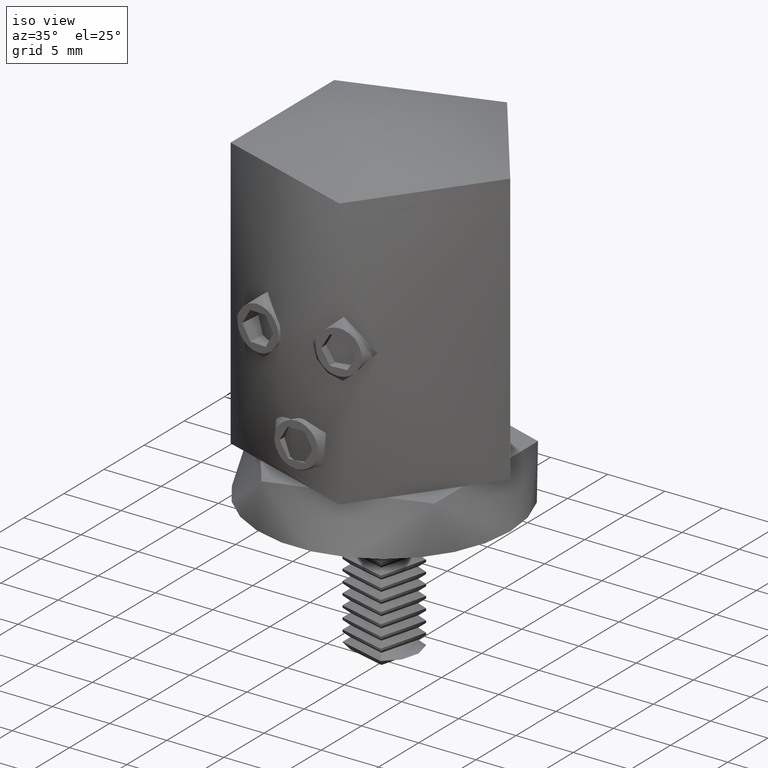
[diagram: clean part render]
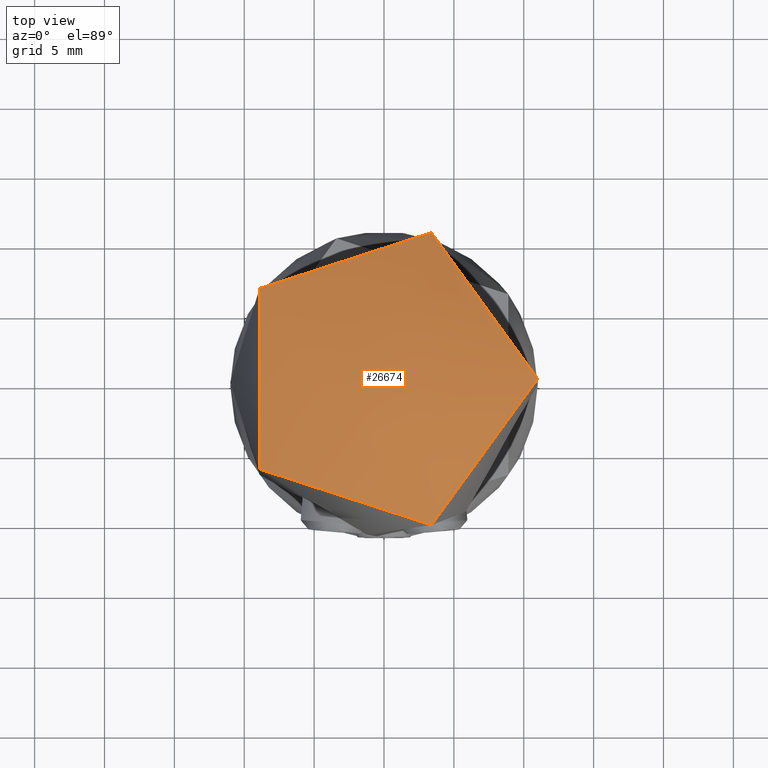
[diagram: tour spotlight — one face highlighted and labeled with its STEP entity id]
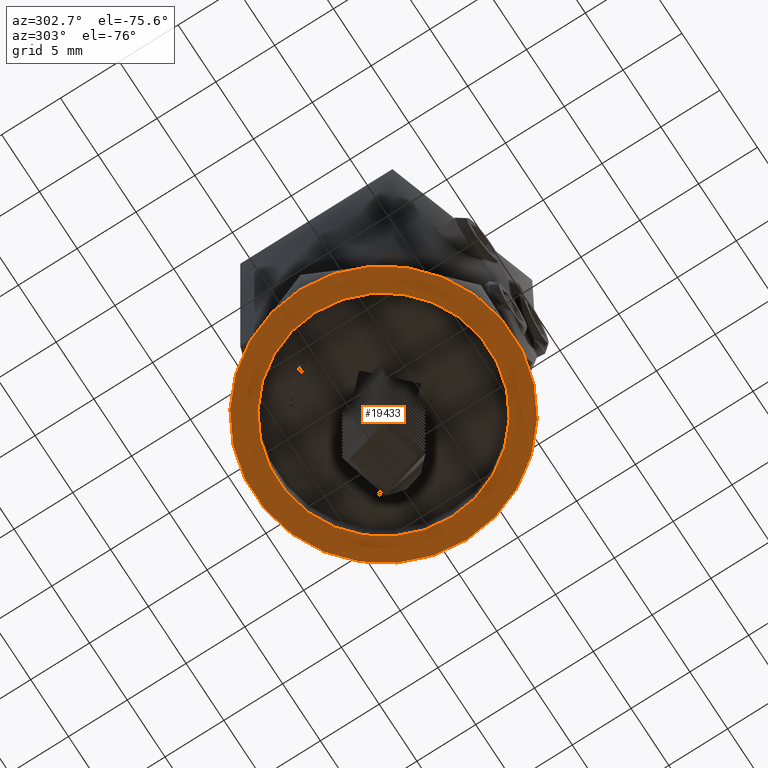
[diagram: tour spotlight — one face highlighted and labeled with its STEP entity id]
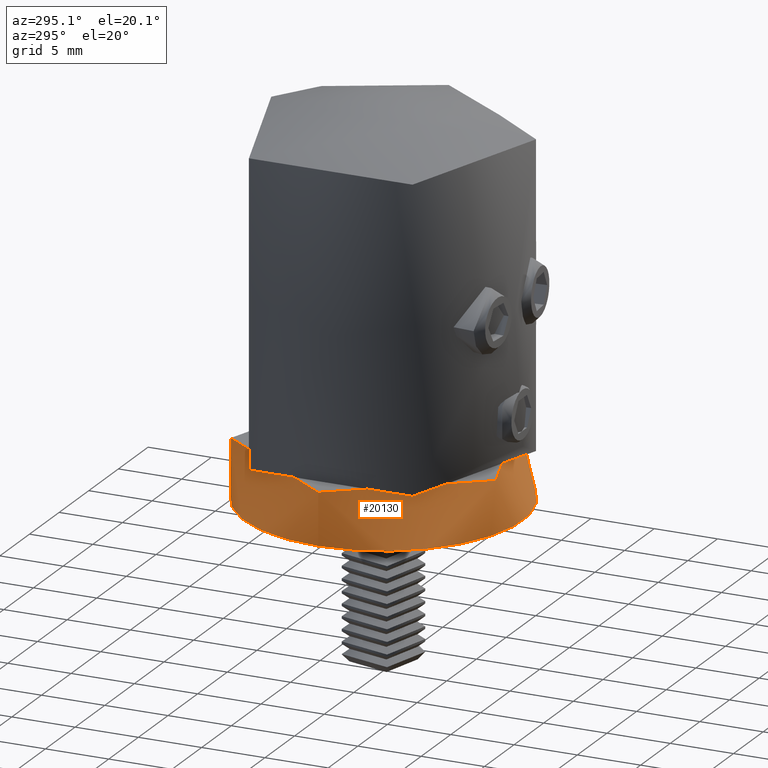
[diagram: tour spotlight — one face highlighted and labeled with its STEP entity id]
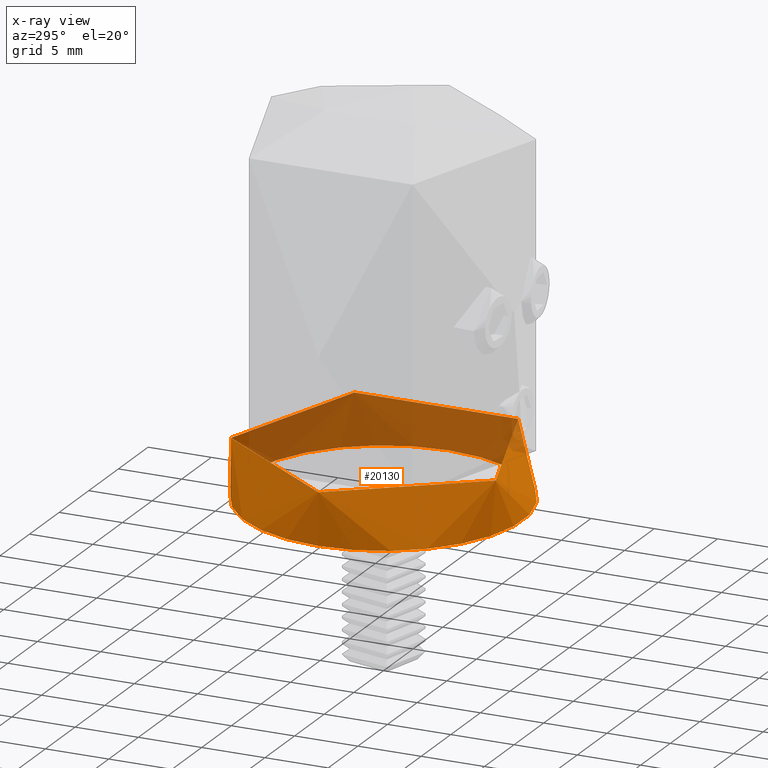
[diagram: x-ray of the same camera — body ghosted, this tour face saturated]
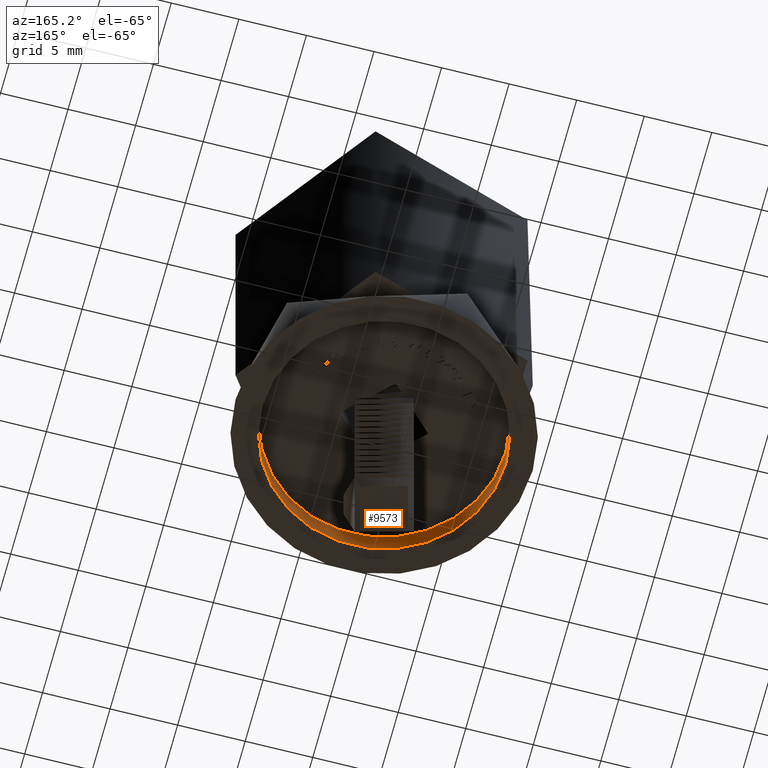
[diagram: tour spotlight — one face highlighted and labeled with its STEP entity id]
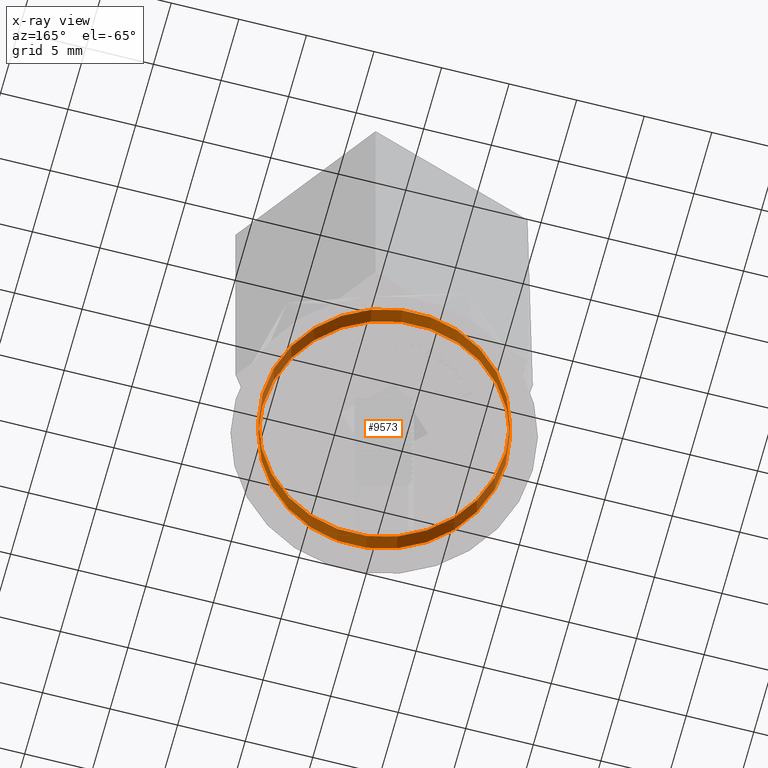
[diagram: x-ray of the same camera — body ghosted, this tour face saturated]
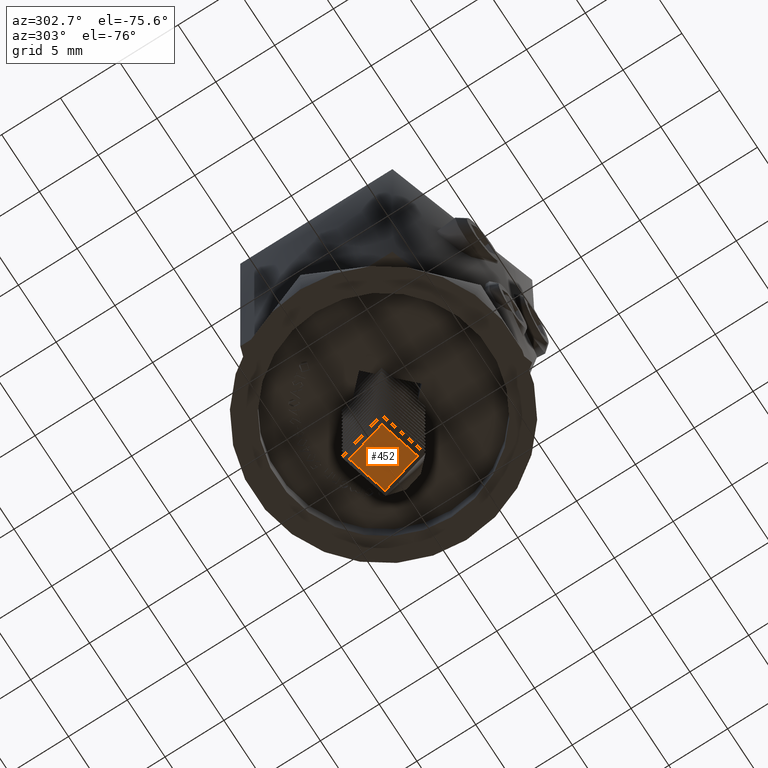
[diagram: tour spotlight — one face highlighted and labeled with its STEP entity id]
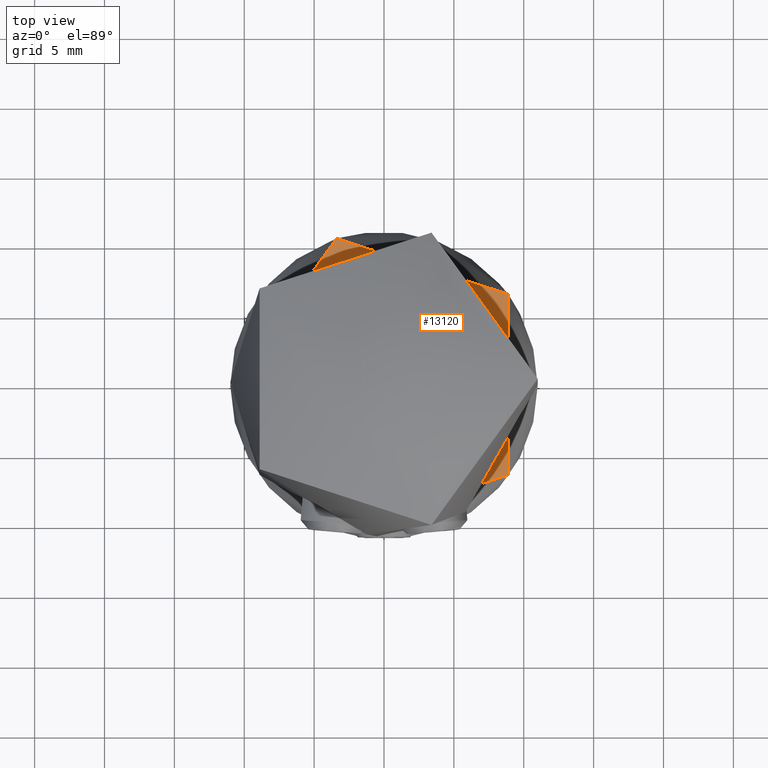
[diagram: tour spotlight — one face highlighted and labeled with its STEP entity id]
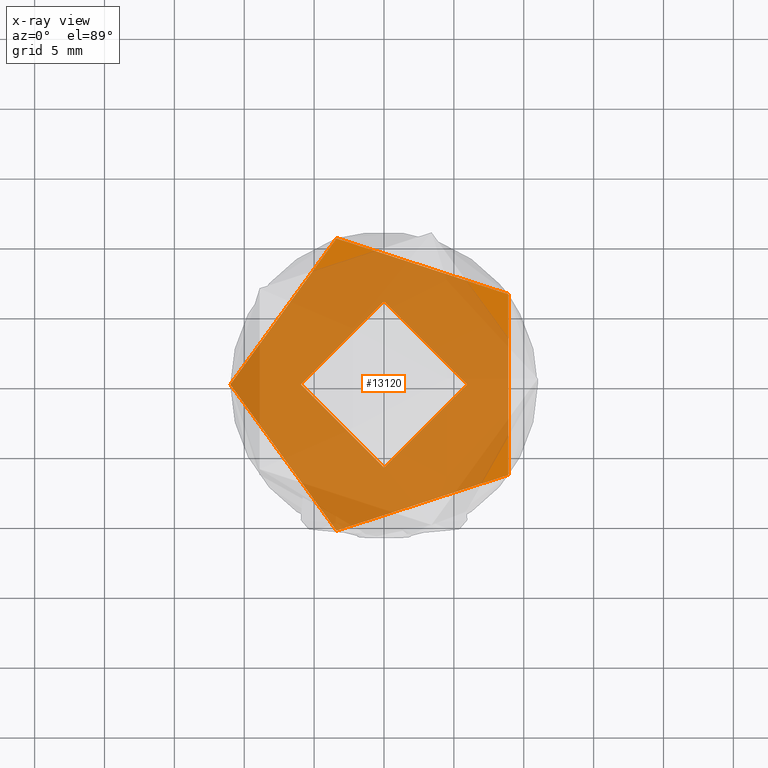
[diagram: x-ray of the same camera — body ghosted, this tour face saturated]
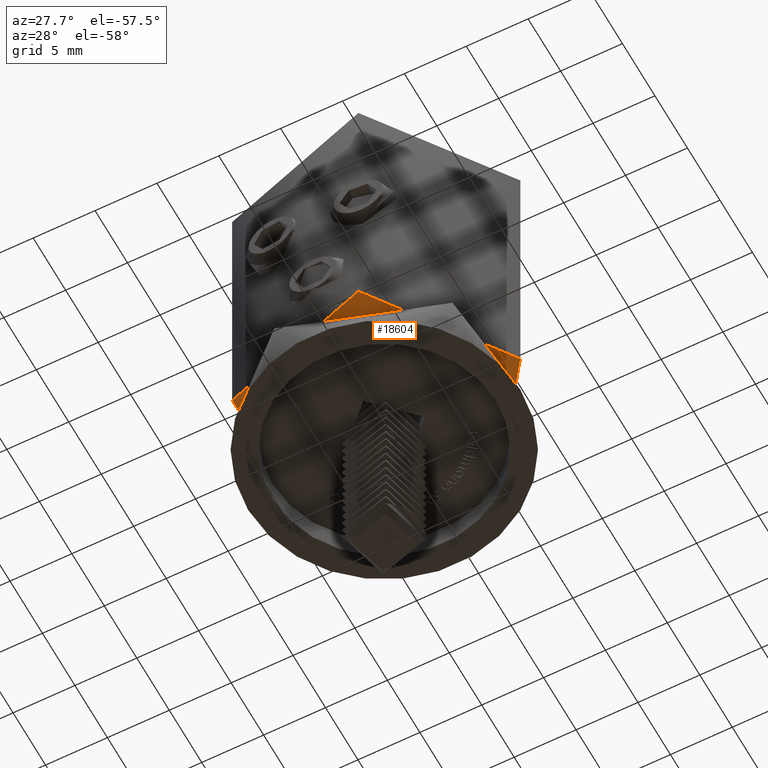
[diagram: tour spotlight — one face highlighted and labeled with its STEP entity id]
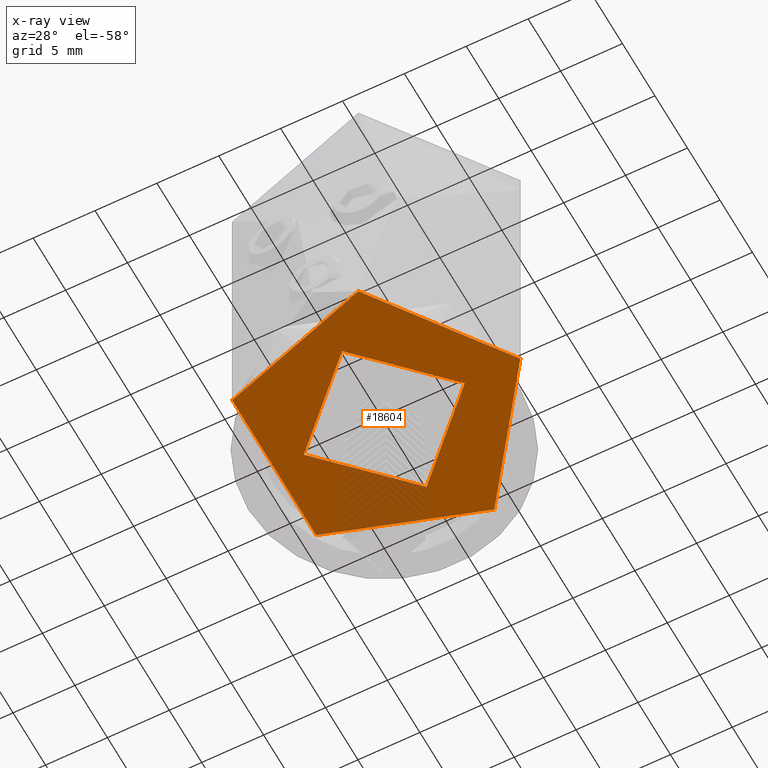
[diagram: x-ray of the same camera — body ghosted, this tour face saturated]
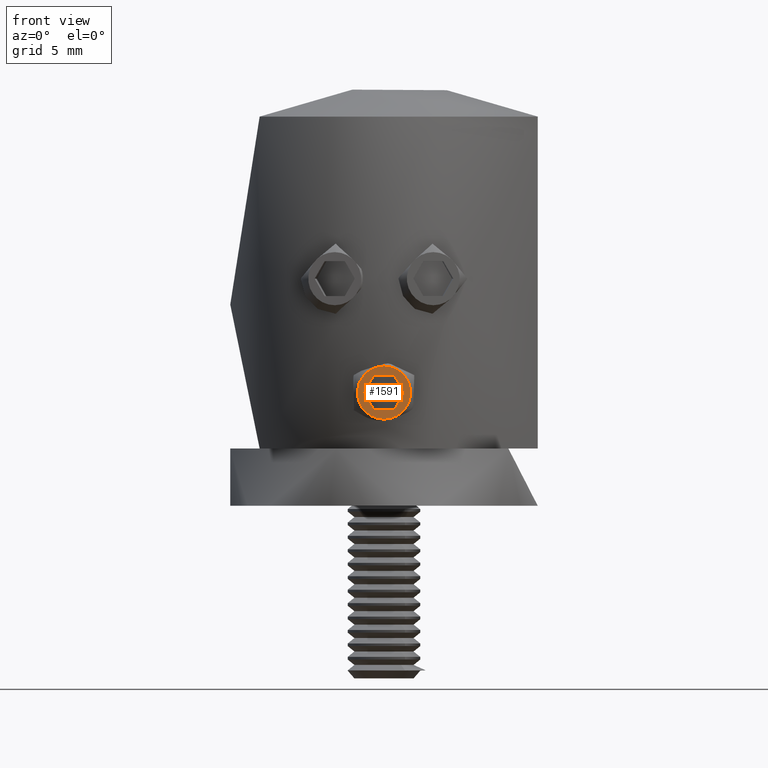
[diagram: tour spotlight — one face highlighted and labeled with its STEP entity id]
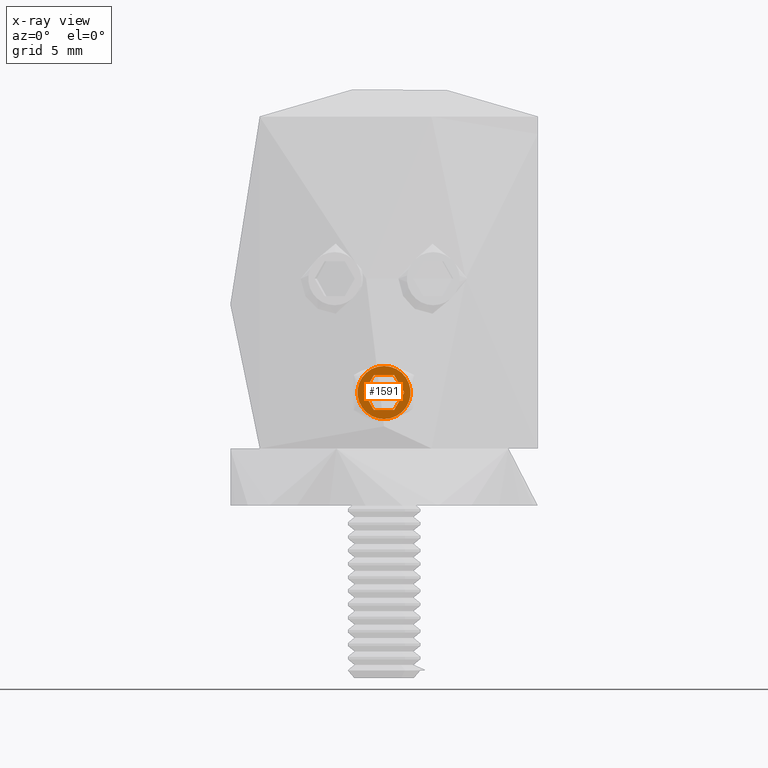
[diagram: x-ray of the same camera — body ghosted, this tour face saturated]
A machine part: a face-by-face anatomy tour. The part has 428 B-rep faces; the first image is the clean iso view, then the 8 largest visible faces are spotlighted one at a time (largest first), each with its STEP entity span.

Face 1 — top view, entity #26674. In plain terms, the highlighted spherical surface has radius 28 mm.
Definition (entity closure, byte-faithful):
#2062 = AXIS2_PLACEMENT_3D ( 'NONE', #13903, #26858, #18201 ) ;
#3911 = CARTESIAN_POINT ( 'NONE',  ( 10.99999999999999600, 0.0000000000000000000, 23.74878637916747000 ) ) ;
#7487 = DIRECTION ( 'NONE',  ( -0.0000000000000000000, -0.0000000000000000000, 1.000000000000000000 ) ) ;
#10169 = ORIENTED_EDGE ( 'NONE', *, *, #20635, .T. ) ;
#13903 = CARTESIAN_POINT ( 'NONE',  ( 0.0000000000000000000, 0.0000000000000000000, -2.000000000000008900 ) ) ;
#15754 = FACE_OUTER_BOUND ( 'NONE', #22679, .T. ) ;
#18201 = DIRECTION ( 'NONE',  ( 0.0000000000000000000, 1.000000000000000000, 0.0000000000000000000 ) ) ;
#20235 = CARTESIAN_POINT ( 'NONE',  ( 0.0000000000000000000, 0.0000000000000000000, 23.74878637916747000 ) ) ;
#20635 = EDGE_CURVE ( 'NONE', #23328, #23328, #25761, .T. ) ;
#22354 = DIRECTION ( 'NONE',  ( 1.000000000000000000, 0.0000000000000000000, 0.0000000000000000000 ) ) ;
#22679 = EDGE_LOOP ( 'NONE', ( #10169 ) ) ;
#23328 = VERTEX_POINT ( 'NONE', #3911 ) ;
#23390 = SPHERICAL_SURFACE ( 'NONE', #2062, 28.00000000000000400 ) ;
#25761 = CIRCLE ( 'NONE', #27180, 10.99999999999999600 ) ;
#26674 = ADVANCED_FACE ( 'NONE', ( #15754 ), #23390, .T. ) ;
#26858 = DIRECTION ( 'NONE',  ( -1.000000000000000000, 0.0000000000000000000, 0.0000000000000000000 ) ) ;
#27180 = AXIS2_PLACEMENT_3D ( 'NONE', #20235, #7487, #22354 ) ;

Face 2 — auxiliary view, entity #19433. In plain terms, the highlighted planar face has unit normal (0, 0, -1).
Definition (entity closure, byte-faithful):
#607 = AXIS2_PLACEMENT_3D ( 'NONE', #18437, #16365, #3906 ) ;
#1583 = CARTESIAN_POINT ( 'NONE',  ( 0.0000000000000000000, 0.0000000000000000000, -4.099999999999999600 ) ) ;
#2397 = VERTEX_POINT ( 'NONE', #12282 ) ;
#3906 = DIRECTION ( 'NONE',  ( -1.000000000000000000, 0.0000000000000000000, 0.0000000000000000000 ) ) ;
#5112 = AXIS2_PLACEMENT_3D ( 'NONE', #18359, #5598, #14163 ) ;
#5598 = DIRECTION ( 'NONE',  ( -0.0000000000000000000, -0.0000000000000000000, -1.000000000000000000 ) ) ;
#6943 = AXIS2_PLACEMENT_3D ( 'NONE', #1583, #14210, #10024 ) ;
#7808 = EDGE_CURVE ( 'NONE', #2397, #2397, #20114, .T. ) ;
#8095 = ORIENTED_EDGE ( 'NONE', *, *, #12590, .T. ) ;
#9032 = EDGE_LOOP ( 'NONE', ( #8095 ) ) ;
#10024 = DIRECTION ( 'NONE',  ( -1.000000000000000000, 0.0000000000000000000, 0.0000000000000000000 ) ) ;
#11844 = CIRCLE ( 'NONE', #6943, 11.00000000000000000 ) ;
#12282 = CARTESIAN_POINT ( 'NONE',  ( -9.000000000000000000, 0.0000000000000000000, -4.099999999999999600 ) ) ;
#12590 = EDGE_CURVE ( 'NONE', #25349, #25349, #11844, .T. ) ;
#14163 = DIRECTION ( 'NONE',  ( -1.000000000000000000, 0.0000000000000000000, 0.0000000000000000000 ) ) ;
#14210 = DIRECTION ( 'NONE',  ( -0.0000000000000000000, -0.0000000000000000000, -1.000000000000000000 ) ) ;
#14335 = ORIENTED_EDGE ( 'NONE', *, *, #7808, .F. ) ;
#14517 = CARTESIAN_POINT ( 'NONE',  ( -11.00000000000000000, 0.0000000000000000000, -4.099999999999999600 ) ) ;
#16365 = DIRECTION ( 'NONE',  ( -0.0000000000000000000, 0.0000000000000000000, -1.000000000000000000 ) ) ;
#16647 = PLANE ( 'NONE',  #607 ) ;
#16788 = FACE_BOUND ( 'NONE', #19451, .T. ) ;
#18359 = CARTESIAN_POINT ( 'NONE',  ( 0.0000000000000000000, 0.0000000000000000000, -4.099999999999999600 ) ) ;
#18437 = CARTESIAN_POINT ( 'NONE',  ( 0.0000000000000000000, 11.00000000000000000, -4.099999999999999600 ) ) ;
#19433 = ADVANCED_FACE ( 'NONE', ( #21108, #16788 ), #16647, .T. ) ;
#19451 = EDGE_LOOP ( 'NONE', ( #14335 ) ) ;
#20114 = CIRCLE ( 'NONE', #5112, 9.000000000000000000 ) ;
#21108 = FACE_OUTER_BOUND ( 'NONE', #9032, .T. ) ;
#25349 = VERTEX_POINT ( 'NONE', #14517 ) ;

Face 3 — auxiliary view, entity #20130. An x-ray twin of the same camera follows (body ghosted, this face saturated) — the face is partly hidden behind the body. In plain terms, the highlighted cylindrical surface (bore or boss wall) has radius 11 mm, axis along (-0, -0, -1).
Definition (entity closure, byte-faithful):
#83 = VERTEX_POINT ( 'NONE', #14148 ) ;
#791 = DIRECTION ( 'NONE',  ( -0.0000000000000000000, -0.0000000000000000000, -1.000000000000000000 ) ) ;
#1583 = CARTESIAN_POINT ( 'NONE',  ( 0.0000000000000000000, 0.0000000000000000000, -4.099999999999999600 ) ) ;
#2851 = EDGE_CURVE ( 'NONE', #83, #83, #18245, .T. ) ;
#3824 = ORIENTED_EDGE ( 'NONE', *, *, #12590, .F. ) ;
#6943 = AXIS2_PLACEMENT_3D ( 'NONE', #1583, #14210, #10024 ) ;
#7495 = AXIS2_PLACEMENT_3D ( 'NONE', #26272, #791, #15925 ) ;
#10024 = DIRECTION ( 'NONE',  ( -1.000000000000000000, 0.0000000000000000000, 0.0000000000000000000 ) ) ;
#11844 = CIRCLE ( 'NONE', #6943, 11.00000000000000000 ) ;
#12590 = EDGE_CURVE ( 'NONE', #25349, #25349, #11844, .T. ) ;
#13155 = DIRECTION ( 'NONE',  ( -0.0000000000000000000, -0.0000000000000000000, -1.000000000000000000 ) ) ;
#14148 = CARTESIAN_POINT ( 'NONE',  ( -11.00000000000000000, 0.0000000000000000000, 0.0000000000000000000 ) ) ;
#14210 = DIRECTION ( 'NONE',  ( -0.0000000000000000000, -0.0000000000000000000, -1.000000000000000000 ) ) ;
#14348 = ORIENTED_EDGE ( 'NONE', *, *, #2851, .T. ) ;
#14517 = CARTESIAN_POINT ( 'NONE',  ( -11.00000000000000000, 0.0000000000000000000, -4.099999999999999600 ) ) ;
#15784 = CYLINDRICAL_SURFACE ( 'NONE', #23391, 11.00000000000000000 ) ;
#15925 = DIRECTION ( 'NONE',  ( -1.000000000000000000, 0.0000000000000000000, 0.0000000000000000000 ) ) ;
#17647 = DIRECTION ( 'NONE',  ( -1.000000000000000000, 0.0000000000000000000, 0.0000000000000000000 ) ) ;
#18245 = CIRCLE ( 'NONE', #7495, 11.00000000000000000 ) ;
#18771 = FACE_OUTER_BOUND ( 'NONE', #26784, .T. ) ;
#20130 = ADVANCED_FACE ( 'NONE', ( #26754, #18771 ), #15784, .T. ) ;
#23391 = AXIS2_PLACEMENT_3D ( 'NONE', #23777, #13155, #17647 ) ;
#23735 = EDGE_LOOP ( 'NONE', ( #14348 ) ) ;
#23777 = CARTESIAN_POINT ( 'NONE',  ( 0.0000000000000000000, 0.0000000000000000000, -2.100000000000000100 ) ) ;
#25349 = VERTEX_POINT ( 'NONE', #14517 ) ;
#26272 = CARTESIAN_POINT ( 'NONE',  ( 0.0000000000000000000, 0.0000000000000000000, 0.0000000000000000000 ) ) ;
#26754 = FACE_OUTER_BOUND ( 'NONE', #23735, .T. ) ;
#26784 = EDGE_LOOP ( 'NONE', ( #3824 ) ) ;

Face 4 — auxiliary view, entity #9573. An x-ray twin of the same camera follows (body ghosted, this face saturated) — the face is partly hidden behind the body. In plain terms, the highlighted cylindrical surface (bore or boss wall) has radius 9 mm, axis along (-0, -0, -1).
Definition (entity closure, byte-faithful):
#2397 = VERTEX_POINT ( 'NONE', #12282 ) ;
#3299 = EDGE_LOOP ( 'NONE', ( #19741 ) ) ;
#5112 = AXIS2_PLACEMENT_3D ( 'NONE', #18359, #5598, #14163 ) ;
#5598 = DIRECTION ( 'NONE',  ( -0.0000000000000000000, -0.0000000000000000000, -1.000000000000000000 ) ) ;
#5779 = CIRCLE ( 'NONE', #11983, 8.999999999999998200 ) ;
#7808 = EDGE_CURVE ( 'NONE', #2397, #2397, #20114, .T. ) ;
#9573 = ADVANCED_FACE ( 'NONE', ( #16367, #21046 ), #25695, .F. ) ;
#10064 = EDGE_LOOP ( 'NONE', ( #26733 ) ) ;
#10725 = CARTESIAN_POINT ( 'NONE',  ( 0.0000000000000000000, 0.0000000000000000000, -2.099999999999999600 ) ) ;
#10920 = DIRECTION ( 'NONE',  ( -1.000000000000000000, 0.0000000000000000000, 0.0000000000000000000 ) ) ;
#11983 = AXIS2_PLACEMENT_3D ( 'NONE', #10725, #25613, #10920 ) ;
#12282 = CARTESIAN_POINT ( 'NONE',  ( -9.000000000000000000, 0.0000000000000000000, -4.099999999999999600 ) ) ;
#13356 = VERTEX_POINT ( 'NONE', #23160 ) ;
#14163 = DIRECTION ( 'NONE',  ( -1.000000000000000000, 0.0000000000000000000, 0.0000000000000000000 ) ) ;
#15875 = DIRECTION ( 'NONE',  ( -1.000000000000000000, 0.0000000000000000000, 0.0000000000000000000 ) ) ;
#16132 = CARTESIAN_POINT ( 'NONE',  ( 0.0000000000000000000, 0.0000000000000000000, -2.100000000000000100 ) ) ;
#16367 = FACE_OUTER_BOUND ( 'NONE', #3299, .T. ) ;
#18359 = CARTESIAN_POINT ( 'NONE',  ( 0.0000000000000000000, 0.0000000000000000000, -4.099999999999999600 ) ) ;
#19025 = EDGE_CURVE ( 'NONE', #13356, #13356, #5779, .T. ) ;
#19741 = ORIENTED_EDGE ( 'NONE', *, *, #7808, .T. ) ;
#20069 = DIRECTION ( 'NONE',  ( -0.0000000000000000000, -0.0000000000000000000, -1.000000000000000000 ) ) ;
#20114 = CIRCLE ( 'NONE', #5112, 9.000000000000000000 ) ;
#20288 = AXIS2_PLACEMENT_3D ( 'NONE', #16132, #20069, #15875 ) ;
#21046 = FACE_OUTER_BOUND ( 'NONE', #10064, .T. ) ;
#23160 = CARTESIAN_POINT ( 'NONE',  ( -8.999999999999998200, 0.0000000000000000000, -2.099999999999999600 ) ) ;
#25613 = DIRECTION ( 'NONE',  ( -0.0000000000000000000, -0.0000000000000000000, -1.000000000000000000 ) ) ;
#25695 = CYLINDRICAL_SURFACE ( 'NONE', #20288, 8.999999999999998200 ) ;
#26733 = ORIENTED_EDGE ( 'NONE', *, *, #19025, .F. ) ;

Face 5 — auxiliary view, entity #452. In plain terms, the highlighted planar face has unit normal (0, 0, -1).
Definition (entity closure, byte-faithful):
#86 = ORIENTED_EDGE ( 'NONE', *, *, #1716, .F. ) ;
#452 = ADVANCED_FACE ( 'NONE', ( #2992 ), #10878, .T. ) ;
#557 = DIRECTION ( 'NONE',  ( 0.0000000000000000000, 0.0000000000000000000, -1.000000000000000000 ) ) ;
#1338 = CARTESIAN_POINT ( 'NONE',  ( 25.00000000000000000, 0.0000000000000000000, 0.0000000000000000000 ) ) ;
#1412 = CARTESIAN_POINT ( 'NONE',  ( 25.00000000000000000, 0.0000000000000000000, 2.445500000000000000 ) ) ;
#1716 = EDGE_CURVE ( 'NONE', #5713, #5713, #24600, .T. ) ;
#2992 = FACE_OUTER_BOUND ( 'NONE', #20999, .T. ) ;
#4439 = DIRECTION ( 'NONE',  ( 1.000000000000000000, 0.0000000000000000000, 0.0000000000000000000 ) ) ;
#5713 = VERTEX_POINT ( 'NONE', #1412 ) ;
#7938 = DIRECTION ( 'NONE',  ( 0.0000000000000000000, 0.0000000000000000000, 1.000000000000000000 ) ) ;
#10878 = PLANE ( 'NONE',  #24406 ) ;
#13978 = DIRECTION ( 'NONE',  ( -1.000000000000000000, -0.0000000000000000000, -0.0000000000000000000 ) ) ;
#20999 = EDGE_LOOP ( 'NONE', ( #86 ) ) ;
#22081 = AXIS2_PLACEMENT_3D ( 'NONE', #1338, #13978, #7938 ) ;
#23698 = CARTESIAN_POINT ( 'NONE',  ( 25.00000000000000000, 2.445500000000000000, 0.0000000000000000000 ) ) ;
#24406 = AXIS2_PLACEMENT_3D ( 'NONE', #23698, #4439, #557 ) ;
#24600 = CIRCLE ( 'NONE', #22081, 2.445500000000000000 ) ;

Face 6 — top view, entity #13120. An x-ray twin of the same camera follows (body ghosted, this face saturated) — the face is partly hidden behind the body. In plain terms, the highlighted planar face has unit normal (0, 0, 1).
Definition (entity closure, byte-faithful):
#83 = VERTEX_POINT ( 'NONE', #14148 ) ;
#791 = DIRECTION ( 'NONE',  ( -0.0000000000000000000, -0.0000000000000000000, -1.000000000000000000 ) ) ;
#907 = DIRECTION ( 'NONE',  ( -0.0000000000000000000, -0.0000000000000000000, -1.000000000000000000 ) ) ;
#1547 = PLANE ( 'NONE',  #21951 ) ;
#2851 = EDGE_CURVE ( 'NONE', #83, #83, #18245, .T. ) ;
#5566 = EDGE_CURVE ( 'NONE', #13710, #13710, #11816, .T. ) ;
#6595 = DIRECTION ( 'NONE',  ( 1.000000000000000000, 0.0000000000000000000, -0.0000000000000000000 ) ) ;
#7495 = AXIS2_PLACEMENT_3D ( 'NONE', #26272, #791, #15925 ) ;
#7839 = DIRECTION ( 'NONE',  ( 0.0000000000000000000, 0.0000000000000000000, 1.000000000000000000 ) ) ;
#9694 = CARTESIAN_POINT ( 'NONE',  ( -5.950000000000000200, 0.0000000000000000000, 0.0000000000000000000 ) ) ;
#10363 = EDGE_LOOP ( 'NONE', ( #21560 ) ) ;
#10915 = CARTESIAN_POINT ( 'NONE',  ( 0.0000000000000000000, 5.950000000000000200, 0.0000000000000000000 ) ) ;
#11669 = DIRECTION ( 'NONE',  ( -1.000000000000000000, 0.0000000000000000000, 0.0000000000000000000 ) ) ;
#11816 = CIRCLE ( 'NONE', #26403, 5.950000000000000200 ) ;
#12996 = EDGE_LOOP ( 'NONE', ( #22121 ) ) ;
#13120 = ADVANCED_FACE ( 'NONE', ( #20337, #15028 ), #1547, .T. ) ;
#13710 = VERTEX_POINT ( 'NONE', #9694 ) ;
#14148 = CARTESIAN_POINT ( 'NONE',  ( -11.00000000000000000, 0.0000000000000000000, 0.0000000000000000000 ) ) ;
#15028 = FACE_OUTER_BOUND ( 'NONE', #10363, .T. ) ;
#15925 = DIRECTION ( 'NONE',  ( -1.000000000000000000, 0.0000000000000000000, 0.0000000000000000000 ) ) ;
#17918 = CARTESIAN_POINT ( 'NONE',  ( 0.0000000000000000000, 0.0000000000000000000, 0.0000000000000000000 ) ) ;
#18245 = CIRCLE ( 'NONE', #7495, 11.00000000000000000 ) ;
#20337 = FACE_BOUND ( 'NONE', #12996, .T. ) ;
#21560 = ORIENTED_EDGE ( 'NONE', *, *, #2851, .F. ) ;
#21951 = AXIS2_PLACEMENT_3D ( 'NONE', #10915, #7839, #6595 ) ;
#22121 = ORIENTED_EDGE ( 'NONE', *, *, #5566, .T. ) ;
#26272 = CARTESIAN_POINT ( 'NONE',  ( 0.0000000000000000000, 0.0000000000000000000, 0.0000000000000000000 ) ) ;
#26403 = AXIS2_PLACEMENT_3D ( 'NONE', #17918, #907, #11669 ) ;

Face 7 — auxiliary view, entity #18604. An x-ray twin of the same camera follows (body ghosted, this face saturated) — the face is partly hidden behind the body. In plain terms, the highlighted planar face has unit normal (0, 0, 1).
Definition (entity closure, byte-faithful):
#1007 = EDGE_LOOP ( 'NONE', ( #16349 ) ) ;
#2122 = EDGE_LOOP ( 'NONE', ( #12743 ) ) ;
#2260 = DIRECTION ( 'NONE',  ( 1.000000000000000000, 0.0000000000000000000, 0.0000000000000000000 ) ) ;
#2271 = DIRECTION ( 'NONE',  ( 1.000000000000000000, 0.0000000000000000000, 0.0000000000000000000 ) ) ;
#3513 = EDGE_CURVE ( 'NONE', #4068, #4068, #18401, .T. ) ;
#4068 = VERTEX_POINT ( 'NONE', #14237 ) ;
#5683 = CIRCLE ( 'NONE', #21700, 6.500000000000016900 ) ;
#5796 = CARTESIAN_POINT ( 'NONE',  ( 0.0000000000000000000, 0.0000000000000000000, 0.0000000000000000000 ) ) ;
#7166 = FACE_OUTER_BOUND ( 'NONE', #2122, .T. ) ;
#10006 = EDGE_CURVE ( 'NONE', #26357, #26357, #5683, .T. ) ;
#10496 = FACE_BOUND ( 'NONE', #1007, .T. ) ;
#12743 = ORIENTED_EDGE ( 'NONE', *, *, #3513, .F. ) ;
#12926 = DIRECTION ( 'NONE',  ( -0.0000000000000000000, -0.0000000000000000000, 1.000000000000000000 ) ) ;
#14176 = DIRECTION ( 'NONE',  ( 0.0000000000000000000, -0.0000000000000000000, 1.000000000000000000 ) ) ;
#14237 = CARTESIAN_POINT ( 'NONE',  ( 11.00000000000000000, 0.0000000000000000000, 0.0000000000000000000 ) ) ;
#14893 = CARTESIAN_POINT ( 'NONE',  ( 0.0000000000000000000, 0.0000000000000000000, 0.0000000000000000000 ) ) ;
#14987 = CARTESIAN_POINT ( 'NONE',  ( 0.0000000000000000000, 0.0000000000000000000, 0.0000000000000000000 ) ) ;
#16265 = AXIS2_PLACEMENT_3D ( 'NONE', #5796, #14176, #16505 ) ;
#16349 = ORIENTED_EDGE ( 'NONE', *, *, #10006, .T. ) ;
#16505 = DIRECTION ( 'NONE',  ( 1.000000000000000000, 0.0000000000000000000, 0.0000000000000000000 ) ) ;
#17246 = DIRECTION ( 'NONE',  ( -0.0000000000000000000, -0.0000000000000000000, 1.000000000000000000 ) ) ;
#18401 = CIRCLE ( 'NONE', #19055, 11.00000000000000000 ) ;
#18604 = ADVANCED_FACE ( 'NONE', ( #10496, #7166 ), #26938, .F. ) ;
#19055 = AXIS2_PLACEMENT_3D ( 'NONE', #14893, #12926, #2260 ) ;
#21700 = AXIS2_PLACEMENT_3D ( 'NONE', #14987, #17246, #2271 ) ;
#22968 = CARTESIAN_POINT ( 'NONE',  ( 6.500000000000016900, 0.0000000000000000000, 0.0000000000000000000 ) ) ;
#26357 = VERTEX_POINT ( 'NONE', #22968 ) ;
#26938 = PLANE ( 'NONE',  #16265 ) ;

Face 8 — front view, entity #1591. An x-ray twin of the same camera follows (body ghosted, this face saturated) — the face is partly hidden behind the body. In plain terms, the highlighted planar face has unit normal (0, -1, 0).
Definition (entity closure, byte-faithful):
#900 = EDGE_CURVE ( 'NONE', #12688, #22014, #7310, .T. ) ;
#1591 = ADVANCED_FACE ( 'NONE', ( #5600, #16936 ), #24777, .T. ) ;
#1650 = VECTOR ( 'NONE', #15341, 1000.000000000000000 ) ;
#1739 = EDGE_CURVE ( 'NONE', #23121, #15428, #4939, .T. ) ;
#3038 = VERTEX_POINT ( 'NONE', #11912 ) ;
#4939 = LINE ( 'NONE', #12122, #24265 ) ;
#5006 = ORIENTED_EDGE ( 'NONE', *, *, #13399, .F. ) ;
#5600 = FACE_BOUND ( 'NONE', #24183, .T. ) ;
#5836 = ORIENTED_EDGE ( 'NONE', *, *, #1739, .F. ) ;
#5899 = EDGE_CURVE ( 'NONE', #22053, #22053, #22780, .T. ) ;
#6889 = CARTESIAN_POINT ( 'NONE',  ( 6.000000000000000000, 1.443375672974064800, -2.774817153268599200E-017 ) ) ;
#7310 = LINE ( 'NONE', #15256, #1650 ) ;
#8240 = LINE ( 'NONE', #19514, #25570 ) ;
#8769 = EDGE_CURVE ( 'NONE', #3038, #11497, #19409, .T. ) ;
#9080 = CARTESIAN_POINT ( 'NONE',  ( 6.000000000000000000, 0.7216878364870326100, 1.250000000000000200 ) ) ;
#9106 = CARTESIAN_POINT ( 'NONE',  ( 6.000000000000000000, -0.7216878364870318300, 1.250000000000000200 ) ) ;
#9269 = ORIENTED_EDGE ( 'NONE', *, *, #5899, .T. ) ;
#9716 = DIRECTION ( 'NONE',  ( 0.0000000000000000000, -0.4999999999999998900, 0.8660254037844387100 ) ) ;
#10097 = DIRECTION ( 'NONE',  ( 0.0000000000000000000, -1.000000000000000000, 0.0000000000000000000 ) ) ;
#10728 = DIRECTION ( 'NONE',  ( 1.000000000000000000, 0.0000000000000000000, 0.0000000000000000000 ) ) ;
#11497 = VERTEX_POINT ( 'NONE', #14296 ) ;
#11536 = DIRECTION ( 'NONE',  ( 0.0000000000000000000, -0.5000000000000001100, -0.8660254037844386000 ) ) ;
#11912 = CARTESIAN_POINT ( 'NONE',  ( 6.000000000000000000, -0.7216878364870318300, 1.250000000000000200 ) ) ;
#12122 = CARTESIAN_POINT ( 'NONE',  ( 6.000000000000000000, 1.443375672974064800, -2.774817153268599200E-017 ) ) ;
#12688 = VERTEX_POINT ( 'NONE', #26244 ) ;
#12933 = CARTESIAN_POINT ( 'NONE',  ( 6.000000000000000000, 0.0000000000000000000, 0.0000000000000000000 ) ) ;
#13399 = EDGE_CURVE ( 'NONE', #22014, #23121, #8240, .T. ) ;
#13487 = EDGE_LOOP ( 'NONE', ( #9269 ) ) ;
#13573 = EDGE_CURVE ( 'NONE', #15428, #3038, #19572, .T. ) ;
#14240 = ORIENTED_EDGE ( 'NONE', *, *, #900, .F. ) ;
#14259 = DIRECTION ( 'NONE',  ( 0.0000000000000000000, 0.0000000000000000000, -1.000000000000000000 ) ) ;
#14296 = CARTESIAN_POINT ( 'NONE',  ( 6.000000000000000000, -1.443375672974064500, -1.084202172485504400E-016 ) ) ;
#14742 = LINE ( 'NONE', #18242, #25758 ) ;
#15256 = CARTESIAN_POINT ( 'NONE',  ( 6.000000000000000000, -0.7216878364870333900, -1.249999999999999600 ) ) ;
#15341 = DIRECTION ( 'NONE',  ( 0.0000000000000000000, 1.000000000000000000, 0.0000000000000000000 ) ) ;
#15428 = VERTEX_POINT ( 'NONE', #9080 ) ;
#16394 = VECTOR ( 'NONE', #11536, 1000.000000000000100 ) ;
#16936 = FACE_OUTER_BOUND ( 'NONE', #13487, .T. ) ;
#18242 = CARTESIAN_POINT ( 'NONE',  ( 6.000000000000000000, -1.443375672974064500, -2.081695953396925700E-016 ) ) ;
#19409 = LINE ( 'NONE', #9106, #16394 ) ;
#19514 = CARTESIAN_POINT ( 'NONE',  ( 6.000000000000000000, 0.7216878364870326100, -1.249999999999999600 ) ) ;
#19572 = LINE ( 'NONE', #26859, #23892 ) ;
#20507 = DIRECTION ( 'NONE',  ( 1.000000000000000000, 0.0000000000000000000, 0.0000000000000000000 ) ) ;
#21236 = DIRECTION ( 'NONE',  ( 0.0000000000000000000, 0.0000000000000000000, -1.000000000000000000 ) ) ;
#21607 = ORIENTED_EDGE ( 'NONE', *, *, #25820, .F. ) ;
#22014 = VERTEX_POINT ( 'NONE', #26218 ) ;
#22053 = VERTEX_POINT ( 'NONE', #25036 ) ;
#22593 = DIRECTION ( 'NONE',  ( 0.0000000000000000000, 0.4999999999999996100, -0.8660254037844388200 ) ) ;
#22626 = AXIS2_PLACEMENT_3D ( 'NONE', #12933, #10728, #21236 ) ;
#22780 = CIRCLE ( 'NONE', #22626, 1.900000000000000100 ) ;
#22816 = ORIENTED_EDGE ( 'NONE', *, *, #8769, .F. ) ;
#23121 = VERTEX_POINT ( 'NONE', #6889 ) ;
#23892 = VECTOR ( 'NONE', #10097, 1000.000000000000000 ) ;
#24183 = EDGE_LOOP ( 'NONE', ( #22816, #24393, #5836, #5006, #14240, #21607 ) ) ;
#24265 = VECTOR ( 'NONE', #9716, 1000.000000000000100 ) ;
#24393 = ORIENTED_EDGE ( 'NONE', *, *, #13573, .F. ) ;
#24777 = PLANE ( 'NONE',  #24922 ) ;
#24922 = AXIS2_PLACEMENT_3D ( 'NONE', #26660, #20507, #14259 ) ;
#25036 = CARTESIAN_POINT ( 'NONE',  ( 6.000000000000000000, 0.0000000000000000000, -1.900000000000000100 ) ) ;
#25570 = VECTOR ( 'NONE', #25638, 1000.000000000000000 ) ;
#25638 = DIRECTION ( 'NONE',  ( 0.0000000000000000000, 0.5000000000000001100, 0.8660254037844386000 ) ) ;
#25758 = VECTOR ( 'NONE', #22593, 1000.000000000000100 ) ;
#25820 = EDGE_CURVE ( 'NONE', #11497, #12688, #14742, .T. ) ;
#26218 = CARTESIAN_POINT ( 'NONE',  ( 6.000000000000000000, 0.7216878364870326100, -1.249999999999999600 ) ) ;
#26244 = CARTESIAN_POINT ( 'NONE',  ( 6.000000000000000000, -0.7216878364870333900, -1.249999999999999600 ) ) ;
#26660 = CARTESIAN_POINT ( 'NONE',  ( 6.000000000000000000, 0.0000000000000000000, 0.0000000000000000000 ) ) ;
#26859 = CARTESIAN_POINT ( 'NONE',  ( 6.000000000000000000, 0.7216878364870326100, 1.250000000000000200 ) ) ;